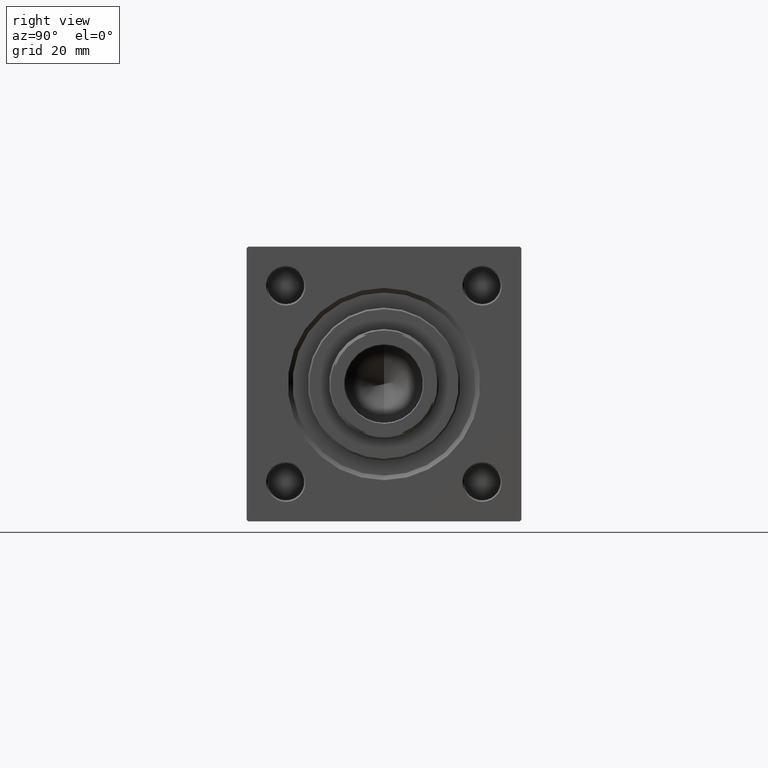
[diagram: clean part render]
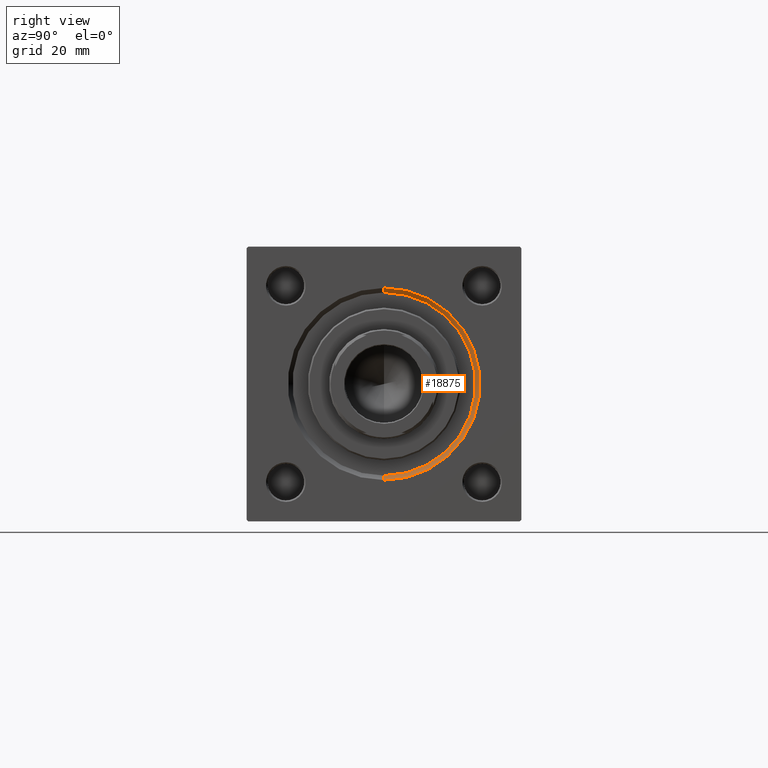
[diagram: same view with one face highlighted and labeled with its STEP entity id]
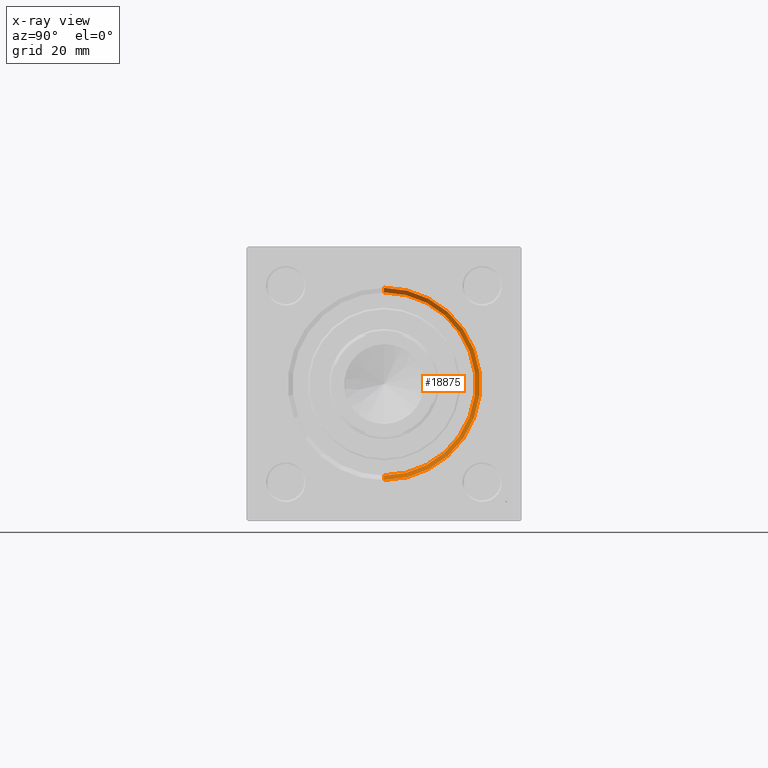
[diagram: x-ray of the same camera — body ghosted, the highlighted face saturated]
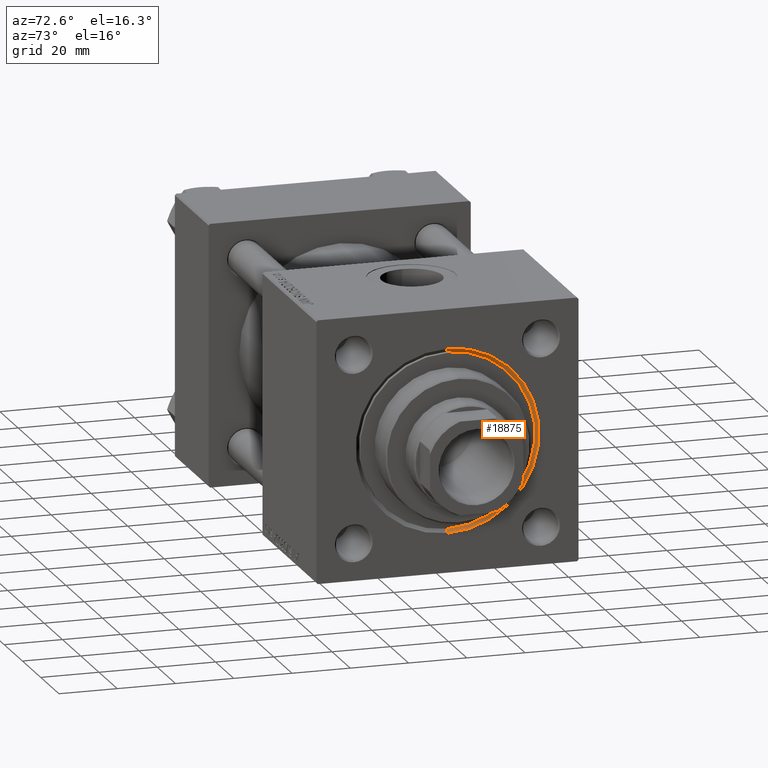
[diagram: same view with one face highlighted and labeled with its STEP entity id]
A machine part, right view. The second image highlights one B-rep face of the part: STEP entity #18875.
The next image is the same camera in x-ray: the body ghosted, the highlighted face saturated — about 0% of this face is hidden behind the body in this view.
A second angle (auxiliary view) of the same face is appended — the face is thin or edge-on in the first view.
In plain terms, the highlighted conical surface has half-angle 45 deg.
Its self-contained STEP definition (entity closure, byte-faithful):
#362 = VERTEX_POINT ( 'NONE', #43504 ) ;
#2877 = CIRCLE ( 'NONE', #48250, 31.49999999999997158 ) ;
#3321 = DIRECTION ( 'NONE',  ( 0.7071067811865474617, 8.659560562354932858E-17, 0.7071067811865474617 ) ) ;
#4163 = DIRECTION ( 'NONE',  ( 0.000000000000000000, 0.000000000000000000, 1.000000000000000000 ) ) ;
#6088 = CARTESIAN_POINT ( 'NONE',  ( 153.5000000000000284, 0.000000000000000000, -30.00000000000000000 ) ) ;
#6305 = EDGE_CURVE ( 'NONE', #15866, #21189, #26407, .T. ) ;
#7285 = CARTESIAN_POINT ( 'NONE',  ( 153.5000000000000284, 0.000000000000000000, 0.000000000000000000 ) ) ;
#11330 = DIRECTION ( 'NONE',  ( 0.000000000000000000, 0.000000000000000000, -1.000000000000000000 ) ) ;
#11693 = ORIENTED_EDGE ( 'NONE', *, *, #6305, .F. ) ;
#12705 = CARTESIAN_POINT ( 'NONE',  ( 155.0000000000000000, 0.000000000000000000, 0.000000000000000000 ) ) ;
#14070 = EDGE_LOOP ( 'NONE', ( #11693, #29086, #24673, #32211 ) ) ;
#14886 = FACE_OUTER_BOUND ( 'NONE', #14070, .T. ) ;
#15866 = VERTEX_POINT ( 'NONE', #32127 ) ;
#18875 = ADVANCED_FACE ( 'NONE', ( #14886 ), #36911, .F. ) ;
#19191 = VERTEX_POINT ( 'NONE', #43186 ) ;
#19399 = CARTESIAN_POINT ( 'NONE',  ( 153.5000000000000284, 0.000000000000000000, 0.000000000000000000 ) ) ;
#21189 = VERTEX_POINT ( 'NONE', #41757 ) ;
#24673 = ORIENTED_EDGE ( 'NONE', *, *, #42506, .T. ) ;
#25822 = AXIS2_PLACEMENT_3D ( 'NONE', #19399, #34884, #35383 ) ;
#26079 = VECTOR ( 'NONE', #3321, 1000.000000000000114 ) ;
#26407 = LINE ( 'NONE', #41905, #26079 ) ;
#27757 = EDGE_CURVE ( 'NONE', #362, #15866, #43695, .T. ) ;
#29086 = ORIENTED_EDGE ( 'NONE', *, *, #27757, .F. ) ;
#29417 = LINE ( 'NONE', #6088, #42698 ) ;
#32127 = CARTESIAN_POINT ( 'NONE',  ( 153.5000000000000284, 3.673940397442059178E-15, 30.00000000000000000 ) ) ;
#32211 = ORIENTED_EDGE ( 'NONE', *, *, #39122, .F. ) ;
#34884 = DIRECTION ( 'NONE',  ( 1.000000000000000000, 0.000000000000000000, 0.000000000000000000 ) ) ;
#35383 = DIRECTION ( 'NONE',  ( 0.000000000000000000, 0.000000000000000000, 1.000000000000000000 ) ) ;
#36911 = CONICAL_SURFACE ( 'NONE', #38554, 30.00000000000000000, 0.7853981633974482790 ) ;
#37047 = DIRECTION ( 'NONE',  ( 0.7071067811865474617, 0.000000000000000000, -0.7071067811865474617 ) ) ;
#38240 = DIRECTION ( 'NONE',  ( 1.000000000000000000, 0.000000000000000000, 0.000000000000000000 ) ) ;
#38554 = AXIS2_PLACEMENT_3D ( 'NONE', #7285, #38240, #11330 ) ;
#39122 = EDGE_CURVE ( 'NONE', #21189, #19191, #2877, .T. ) ;
#41757 = CARTESIAN_POINT ( 'NONE',  ( 155.0000000000000000, 3.857637417314158745E-15, 31.49999999999997158 ) ) ;
#41905 = CARTESIAN_POINT ( 'NONE',  ( 153.5000000000000284, 3.673940397442059178E-15, 30.00000000000000000 ) ) ;
#42506 = EDGE_CURVE ( 'NONE', #362, #19191, #29417, .T. ) ;
#42698 = VECTOR ( 'NONE', #37047, 1000.000000000000114 ) ;
#43186 = CARTESIAN_POINT ( 'NONE',  ( 155.0000000000000000, 0.000000000000000000, -31.49999999999997158 ) ) ;
#43504 = CARTESIAN_POINT ( 'NONE',  ( 153.5000000000000284, 0.000000000000000000, -30.00000000000000000 ) ) ;
#43695 = CIRCLE ( 'NONE', #25822, 30.00000000000000000 ) ;
#47988 = DIRECTION ( 'NONE',  ( -1.000000000000000000, 0.000000000000000000, -0.000000000000000000 ) ) ;
#48250 = AXIS2_PLACEMENT_3D ( 'NONE', #12705, #47988, #4163 ) ;